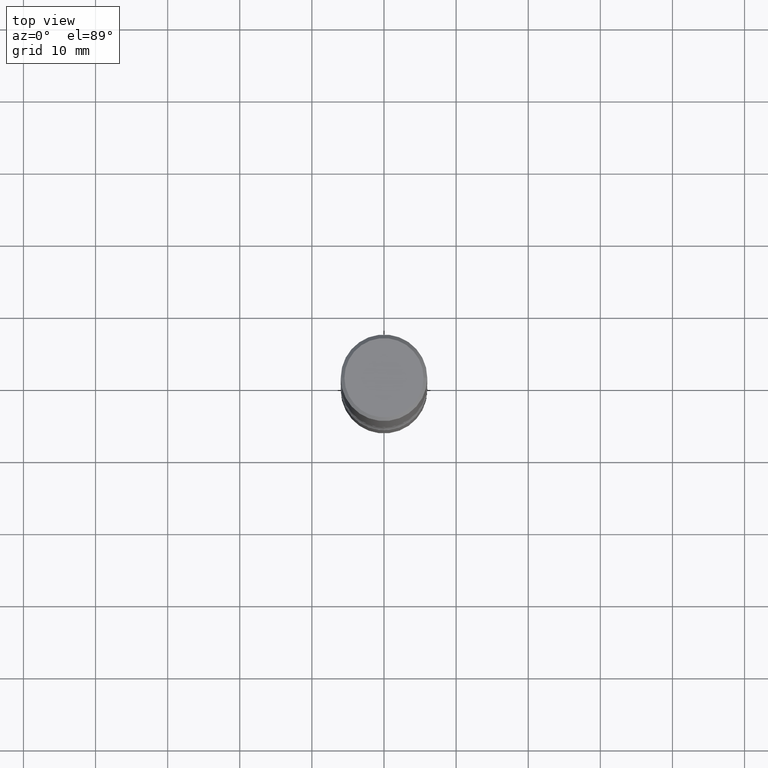
[diagram: clean part render]
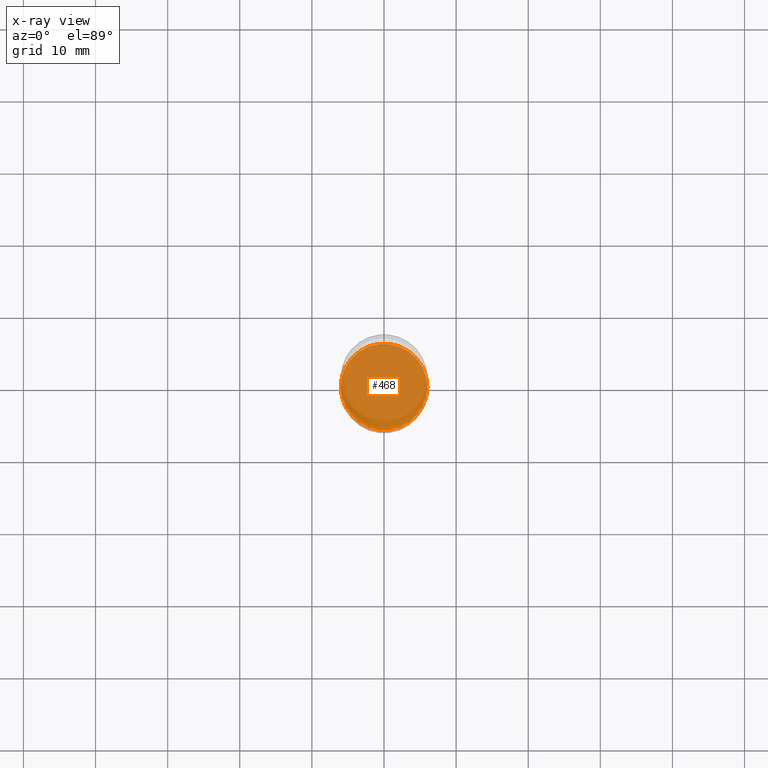
[diagram: x-ray — body ghosted, one internal face saturated and labeled with its STEP entity id]
A machine part, top view, then the same camera in x-ray: the body is ghosted and one INTERNAL B-rep face — a face not visible from any outside direction — is saturated and labeled: STEP entity #468.
In plain terms, the highlighted planar face has unit normal (0, -0, -1).
Its self-contained STEP definition (entity closure, byte-faithful):
#15 = DIRECTION ( 'NONE',  ( 1.000000000000000000, -6.982962677686269077E-15, 0.000000000000000000 ) ) ;
#83 = VERTEX_POINT ( 'NONE', #343 ) ;
#90 = ORIENTED_EDGE ( 'NONE', *, *, #350, .T. ) ;
#97 = CARTESIAN_POINT ( 'NONE',  ( 7.124628819939777829E-29, -1.017208173258562247E-14, -2.913400000000000212 ) ) ;
#98 = CARTESIAN_POINT ( 'NONE',  ( 7.124628819939777829E-29, -1.017208173258562247E-14, -2.913400000000000212 ) ) ;
#130 = CARTESIAN_POINT ( 'NONE',  ( 7.124628819939777829E-29, -1.017208173258562247E-14, -2.913400000000000212 ) ) ;
#136 = VERTEX_POINT ( 'NONE', #417 ) ;
#145 = CIRCLE ( 'NONE', #502, 0.2362000000000001321 ) ;
#150 = DIRECTION ( 'NONE',  ( -1.000000000000000000, 6.982962677686265922E-15, -4.876176775795935793E-29 ) ) ;
#174 = AXIS2_PLACEMENT_3D ( 'NONE', #97, #370, #15 ) ;
#235 = CIRCLE ( 'NONE', #174, 0.2362000000000001321 ) ;
#263 = DIRECTION ( 'NONE',  ( -2.445468806185136597E-29, 3.491481338843145583E-15, 1.000000000000000000 ) ) ;
#318 = PLANE ( 'NONE',  #377 ) ;
#323 = ORIENTED_EDGE ( 'NONE', *, *, #419, .T. ) ;
#340 = EDGE_LOOP ( 'NONE', ( #323, #90 ) ) ;
#343 = CARTESIAN_POINT ( 'NONE',  ( -0.2362000000000001321, -1.022834771985753829E-14, -2.913400000000000212 ) ) ;
#350 = EDGE_CURVE ( 'NONE', #83, #136, #145, .T. ) ;
#370 = DIRECTION ( 'NONE',  ( -2.445468806185136597E-29, 3.491481338843145583E-15, 1.000000000000000000 ) ) ;
#377 = AXIS2_PLACEMENT_3D ( 'NONE', #98, #534, #150 ) ;
#417 = CARTESIAN_POINT ( 'NONE',  ( 0.2362000000000001321, -1.182145751705511899E-14, -2.913400000000000212 ) ) ;
#419 = EDGE_CURVE ( 'NONE', #136, #83, #235, .T. ) ;
#468 = ADVANCED_FACE ( 'NONE', ( #493 ), #318, .F. ) ;
#480 = DIRECTION ( 'NONE',  ( 1.000000000000000000, -6.982962677686269077E-15, 0.000000000000000000 ) ) ;
#493 = FACE_OUTER_BOUND ( 'NONE', #340, .T. ) ;
#502 = AXIS2_PLACEMENT_3D ( 'NONE', #130, #263, #480 ) ;
#534 = DIRECTION ( 'NONE',  ( 2.438088387897960049E-29, -3.491481338843145188E-15, -1.000000000000000000 ) ) ;